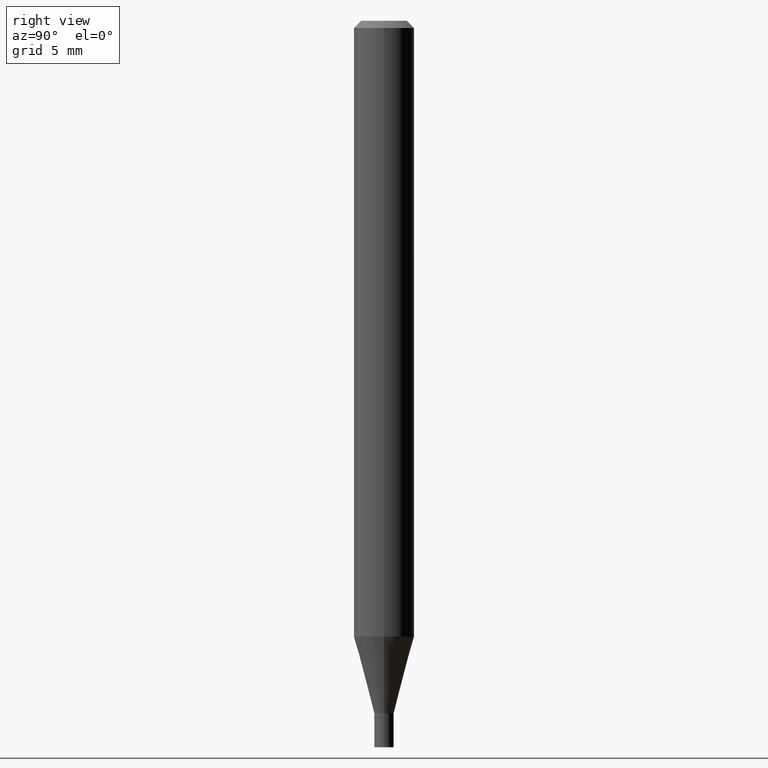
[diagram: clean part render]
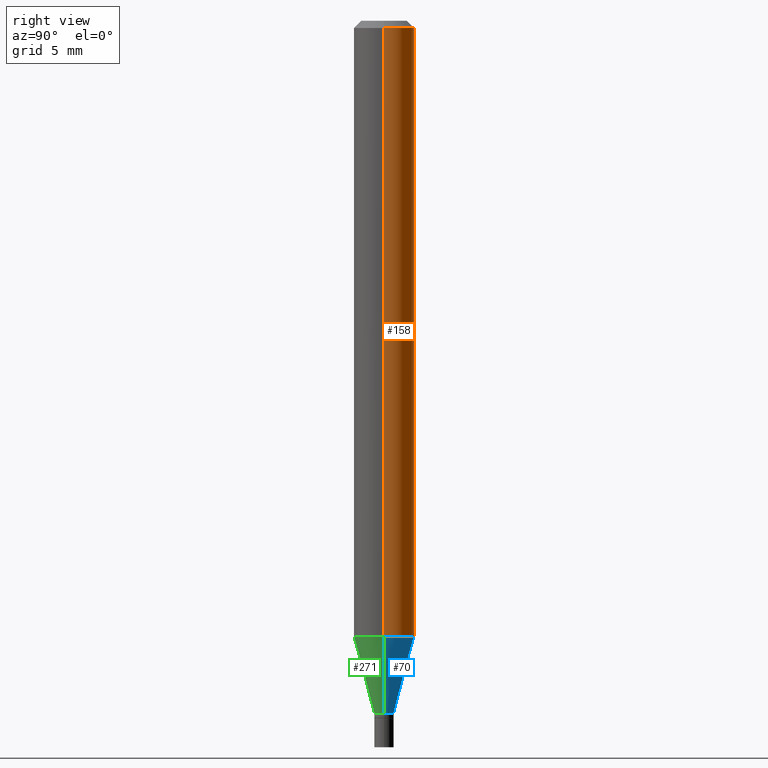
[diagram: same view with three faces highlighted in distinct colors, each labeled with its STEP entity id]
A machine part, right view with three faces highlighted in distinct colors.
Their STEP definitions:

[orange] entity #158 — the highlighted cylindrical surface (edge-blend (fillet) strip) has radius 1.5875 mm, axis along (-0, 0, 1).
#3 = DIRECTION ( 'NONE',  ( -2.445468806185136877E-29, 3.491481338843145188E-15, 1.000000000000000000 ) ) ;
#26 = EDGE_CURVE ( 'NONE', #304, #456, #231, .T. ) ;
#28 = AXIS2_PLACEMENT_3D ( 'NONE', #148, #45, #288 ) ;
#36 = ORIENTED_EDGE ( 'NONE', *, *, #26, .F. ) ;
#42 = FACE_OUTER_BOUND ( 'NONE', #460, .T. ) ;
#45 = DIRECTION ( 'NONE',  ( -2.445468806185136597E-29, 3.491481338843145583E-15, 1.000000000000000000 ) ) ;
#56 = CARTESIAN_POINT ( 'NONE',  ( 0.06249999999999999306, -4.875462087515837728E-15, -1.271387840678323000 ) ) ;
#69 = CARTESIAN_POINT ( 'NONE',  ( -0.06250000000000000000, -1.801610360271484545E-15, -0.01499999999999999944 ) ) ;
#83 = AXIS2_PLACEMENT_3D ( 'NONE', #349, #209, #114 ) ;
#98 = DIRECTION ( 'NONE',  ( -2.445468806185136877E-29, 3.491481338843145188E-15, 1.000000000000000000 ) ) ;
#114 = DIRECTION ( 'NONE',  ( 1.000000000000000000, -6.982962677686262766E-15, 0.000000000000000000 ) ) ;
#124 = EDGE_CURVE ( 'NONE', #304, #452, #376, .T. ) ;
#148 = CARTESIAN_POINT ( 'NONE',  ( 3.668203209277705088E-31, -5.237222008264718399E-17, -0.01499999999999999944 ) ) ;
#158 = ADVANCED_FACE ( 'NONE', ( #42 ), #178, .T. ) ;
#164 = ORIENTED_EDGE ( 'NONE', *, *, #187, .T. ) ;
#165 = ORIENTED_EDGE ( 'NONE', *, *, #124, .T. ) ;
#178 = CYLINDRICAL_SURFACE ( 'NONE', #210, 0.06250000000000000000 ) ;
#179 = CARTESIAN_POINT ( 'NONE',  ( -0.06249999999999999306, -3.994937710310384232E-15, -1.271387840678323000 ) ) ;
#187 = EDGE_CURVE ( 'NONE', #452, #433, #252, .T. ) ;
#195 = ORIENTED_EDGE ( 'NONE', *, *, #215, .F. ) ;
#209 = DIRECTION ( 'NONE',  ( -2.445468806185136597E-29, 3.491481338843145583E-15, 1.000000000000000000 ) ) ;
#210 = AXIS2_PLACEMENT_3D ( 'NONE', #465, #401, #325 ) ;
#215 = EDGE_CURVE ( 'NONE', #456, #433, #390, .T. ) ;
#231 = LINE ( 'NONE', #384, #272 ) ;
#251 = CARTESIAN_POINT ( 'NONE',  ( 0.06250000000000000000, -4.888073874380388472E-16, -0.01499999999999999944 ) ) ;
#252 = LINE ( 'NONE', #405, #438 ) ;
#272 = VECTOR ( 'NONE', #98, 39.37007874015748143 ) ;
#288 = DIRECTION ( 'NONE',  ( 1.000000000000000000, -6.982962677686266711E-15, 0.000000000000000000 ) ) ;
#304 = VERTEX_POINT ( 'NONE', #56 ) ;
#325 = DIRECTION ( 'NONE',  ( 1.000000000000000000, -6.982962677686266711E-15, 4.876176775795935793E-29 ) ) ;
#349 = CARTESIAN_POINT ( 'NONE',  ( 3.109139304941917248E-29, -4.439026920160447637E-15, -1.271387840678323000 ) ) ;
#376 = CIRCLE ( 'NONE', #83, 0.06250000000000000000 ) ;
#384 = CARTESIAN_POINT ( 'NONE',  ( 0.06250000000000000000, -4.364351673553916694E-16, 3.047610484872459871E-30 ) ) ;
#390 = CIRCLE ( 'NONE', #28, 0.06250000000000000000 ) ;
#401 = DIRECTION ( 'NONE',  ( -2.445468806185136597E-29, 3.491481338843145583E-15, 1.000000000000000000 ) ) ;
#405 = CARTESIAN_POINT ( 'NONE',  ( -0.06250000000000000000, 4.440892098500626162E-16, -3.074334431409316114E-30 ) ) ;
#433 = VERTEX_POINT ( 'NONE', #69 ) ;
#438 = VECTOR ( 'NONE', #3, 39.37007874015748143 ) ;
#452 = VERTEX_POINT ( 'NONE', #179 ) ;
#456 = VERTEX_POINT ( 'NONE', #251 ) ;
#460 = EDGE_LOOP ( 'NONE', ( #165, #164, #195, #36 ) ) ;
#465 = CARTESIAN_POINT ( 'NONE',  ( 0.000000000000000000, 0.000000000000000000, 0.000000000000000000 ) ) ;

[blue] entity #70 — the highlighted conical surface has half-angle 15 deg.
#2 = CARTESIAN_POINT ( 'NONE',  ( -0.01999999999999992409, -4.422823738852031139E-15, -1.429999999999999938 ) ) ;
#40 = DIRECTION ( 'NONE',  ( -2.445468806185136597E-29, 3.491481338843145583E-15, 1.000000000000000000 ) ) ;
#56 = CARTESIAN_POINT ( 'NONE',  ( 0.06249999999999999306, -4.875462087515837728E-15, -1.271387840678323000 ) ) ;
#70 = ADVANCED_FACE ( 'NONE', ( #290 ), #182, .T. ) ;
#71 = VERTEX_POINT ( 'NONE', #2 ) ;
#83 = AXIS2_PLACEMENT_3D ( 'NONE', #349, #209, #114 ) ;
#89 = EDGE_CURVE ( 'NONE', #102, #304, #142, .T. ) ;
#102 = VERTEX_POINT ( 'NONE', #247 ) ;
#104 = CARTESIAN_POINT ( 'NONE',  ( 3.497020392844745759E-29, -4.992818314545698211E-15, -1.429999999999999938 ) ) ;
#112 = DIRECTION ( 'NONE',  ( -0.2588190451025215166, 5.211531920934551042E-15, 0.9659258262890679791 ) ) ;
#114 = DIRECTION ( 'NONE',  ( 1.000000000000000000, -6.982962677686262766E-15, 0.000000000000000000 ) ) ;
#117 = LINE ( 'NONE', #170, #457 ) ;
#118 = CARTESIAN_POINT ( 'NONE',  ( 0.01999999999999992409, -5.132477568099422441E-15, -1.429999999999999938 ) ) ;
#124 = EDGE_CURVE ( 'NONE', #304, #452, #376, .T. ) ;
#142 = LINE ( 'NONE', #118, #428 ) ;
#147 = CARTESIAN_POINT ( 'NONE',  ( 3.497020392844745759E-29, -4.992818314545698211E-15, -1.429999999999999938 ) ) ;
#170 = CARTESIAN_POINT ( 'NONE',  ( -0.01999999999999992409, -4.850709767393678047E-15, -1.429999999999999938 ) ) ;
#171 = AXIS2_PLACEMENT_3D ( 'NONE', #104, #40, #436 ) ;
#179 = CARTESIAN_POINT ( 'NONE',  ( -0.06249999999999999306, -3.994937710310384232E-15, -1.271387840678323000 ) ) ;
#180 = DIRECTION ( 'NONE',  ( 0.2588190451025215166, 1.565188264969620784E-15, 0.9659258262890679791 ) ) ;
#182 = CONICAL_SURFACE ( 'NONE', #317, 0.01999999999999992409, 0.2617993877991502405 ) ;
#204 = ORIENTED_EDGE ( 'NONE', *, *, #361, .T. ) ;
#209 = DIRECTION ( 'NONE',  ( -2.445468806185136597E-29, 3.491481338843145583E-15, 1.000000000000000000 ) ) ;
#217 = DIRECTION ( 'NONE',  ( 1.000000000000000000, -6.982962677686262766E-15, 0.000000000000000000 ) ) ;
#232 = ORIENTED_EDGE ( 'NONE', *, *, #337, .T. ) ;
#233 = ORIENTED_EDGE ( 'NONE', *, *, #124, .F. ) ;
#247 = CARTESIAN_POINT ( 'NONE',  ( 0.01999999999999992409, -5.132477568099422441E-15, -1.429999999999999938 ) ) ;
#270 = EDGE_LOOP ( 'NONE', ( #232, #204, #233, #340 ) ) ;
#290 = FACE_OUTER_BOUND ( 'NONE', #270, .T. ) ;
#304 = VERTEX_POINT ( 'NONE', #56 ) ;
#317 = AXIS2_PLACEMENT_3D ( 'NONE', #147, #324, #217 ) ;
#324 = DIRECTION ( 'NONE',  ( -2.445468806185136597E-29, 3.491481338843145583E-15, 1.000000000000000000 ) ) ;
#337 = EDGE_CURVE ( 'NONE', #102, #71, #383, .T. ) ;
#340 = ORIENTED_EDGE ( 'NONE', *, *, #89, .F. ) ;
#349 = CARTESIAN_POINT ( 'NONE',  ( 3.109139304941917248E-29, -4.439026920160447637E-15, -1.271387840678323000 ) ) ;
#361 = EDGE_CURVE ( 'NONE', #71, #452, #117, .T. ) ;
#376 = CIRCLE ( 'NONE', #83, 0.06250000000000000000 ) ;
#383 = CIRCLE ( 'NONE', #171, 0.01999999999999992409 ) ;
#428 = VECTOR ( 'NONE', #180, 39.37007874015748143 ) ;
#436 = DIRECTION ( 'NONE',  ( 1.000000000000000000, -6.982962677686262766E-15, 0.000000000000000000 ) ) ;
#452 = VERTEX_POINT ( 'NONE', #179 ) ;
#457 = VECTOR ( 'NONE', #112, 39.37007874015748143 ) ;

[green] entity #271 — the highlighted conical surface has half-angle 15 deg.
#2 = CARTESIAN_POINT ( 'NONE',  ( -0.01999999999999992409, -4.422823738852031139E-15, -1.429999999999999938 ) ) ;
#31 = CARTESIAN_POINT ( 'NONE',  ( 3.109139304941917248E-29, -4.439026920160447637E-15, -1.271387840678323000 ) ) ;
#56 = CARTESIAN_POINT ( 'NONE',  ( 0.06249999999999999306, -4.875462087515837728E-15, -1.271387840678323000 ) ) ;
#63 = EDGE_LOOP ( 'NONE', ( #345, #103, #453, #463 ) ) ;
#71 = VERTEX_POINT ( 'NONE', #2 ) ;
#81 = DIRECTION ( 'NONE',  ( 1.000000000000000000, -6.982962677686262766E-15, 0.000000000000000000 ) ) ;
#89 = EDGE_CURVE ( 'NONE', #102, #304, #142, .T. ) ;
#90 = FACE_OUTER_BOUND ( 'NONE', #63, .T. ) ;
#91 = CIRCLE ( 'NONE', #236, 0.01999999999999992409 ) ;
#102 = VERTEX_POINT ( 'NONE', #247 ) ;
#103 = ORIENTED_EDGE ( 'NONE', *, *, #244, .T. ) ;
#112 = DIRECTION ( 'NONE',  ( -0.2588190451025215166, 5.211531920934551042E-15, 0.9659258262890679791 ) ) ;
#117 = LINE ( 'NONE', #170, #457 ) ;
#118 = CARTESIAN_POINT ( 'NONE',  ( 0.01999999999999992409, -5.132477568099422441E-15, -1.429999999999999938 ) ) ;
#120 = CONICAL_SURFACE ( 'NONE', #193, 0.01999999999999992409, 0.2617993877991502405 ) ;
#142 = LINE ( 'NONE', #118, #428 ) ;
#170 = CARTESIAN_POINT ( 'NONE',  ( -0.01999999999999992409, -4.850709767393678047E-15, -1.429999999999999938 ) ) ;
#176 = DIRECTION ( 'NONE',  ( 1.000000000000000000, -6.982962677686262766E-15, 0.000000000000000000 ) ) ;
#179 = CARTESIAN_POINT ( 'NONE',  ( -0.06249999999999999306, -3.994937710310384232E-15, -1.271387840678323000 ) ) ;
#180 = DIRECTION ( 'NONE',  ( 0.2588190451025215166, 1.565188264969620784E-15, 0.9659258262890679791 ) ) ;
#193 = AXIS2_PLACEMENT_3D ( 'NONE', #224, #256, #81 ) ;
#224 = CARTESIAN_POINT ( 'NONE',  ( 3.497020392844745759E-29, -4.992818314545698211E-15, -1.429999999999999938 ) ) ;
#236 = AXIS2_PLACEMENT_3D ( 'NONE', #259, #372, #298 ) ;
#244 = EDGE_CURVE ( 'NONE', #71, #102, #91, .T. ) ;
#247 = CARTESIAN_POINT ( 'NONE',  ( 0.01999999999999992409, -5.132477568099422441E-15, -1.429999999999999938 ) ) ;
#256 = DIRECTION ( 'NONE',  ( -2.445468806185136597E-29, 3.491481338843145583E-15, 1.000000000000000000 ) ) ;
#259 = CARTESIAN_POINT ( 'NONE',  ( 3.497020392844745759E-29, -4.992818314545698211E-15, -1.429999999999999938 ) ) ;
#271 = ADVANCED_FACE ( 'NONE', ( #90 ), #120, .T. ) ;
#298 = DIRECTION ( 'NONE',  ( 1.000000000000000000, -6.982962677686262766E-15, 0.000000000000000000 ) ) ;
#304 = VERTEX_POINT ( 'NONE', #56 ) ;
#330 = EDGE_CURVE ( 'NONE', #452, #304, #461, .T. ) ;
#345 = ORIENTED_EDGE ( 'NONE', *, *, #361, .F. ) ;
#353 = AXIS2_PLACEMENT_3D ( 'NONE', #31, #407, #176 ) ;
#361 = EDGE_CURVE ( 'NONE', #71, #452, #117, .T. ) ;
#372 = DIRECTION ( 'NONE',  ( -2.445468806185136597E-29, 3.491481338843145583E-15, 1.000000000000000000 ) ) ;
#407 = DIRECTION ( 'NONE',  ( -2.445468806185136597E-29, 3.491481338843145583E-15, 1.000000000000000000 ) ) ;
#428 = VECTOR ( 'NONE', #180, 39.37007874015748143 ) ;
#452 = VERTEX_POINT ( 'NONE', #179 ) ;
#453 = ORIENTED_EDGE ( 'NONE', *, *, #89, .T. ) ;
#457 = VECTOR ( 'NONE', #112, 39.37007874015748143 ) ;
#461 = CIRCLE ( 'NONE', #353, 0.06250000000000000000 ) ;
#463 = ORIENTED_EDGE ( 'NONE', *, *, #330, .F. ) ;